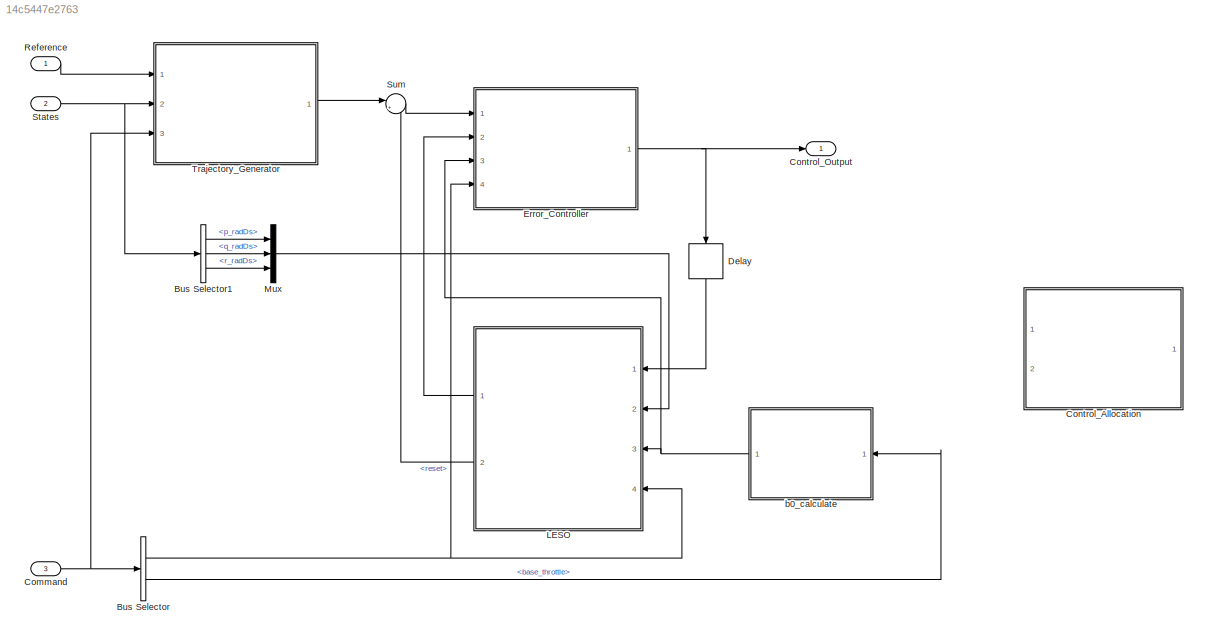
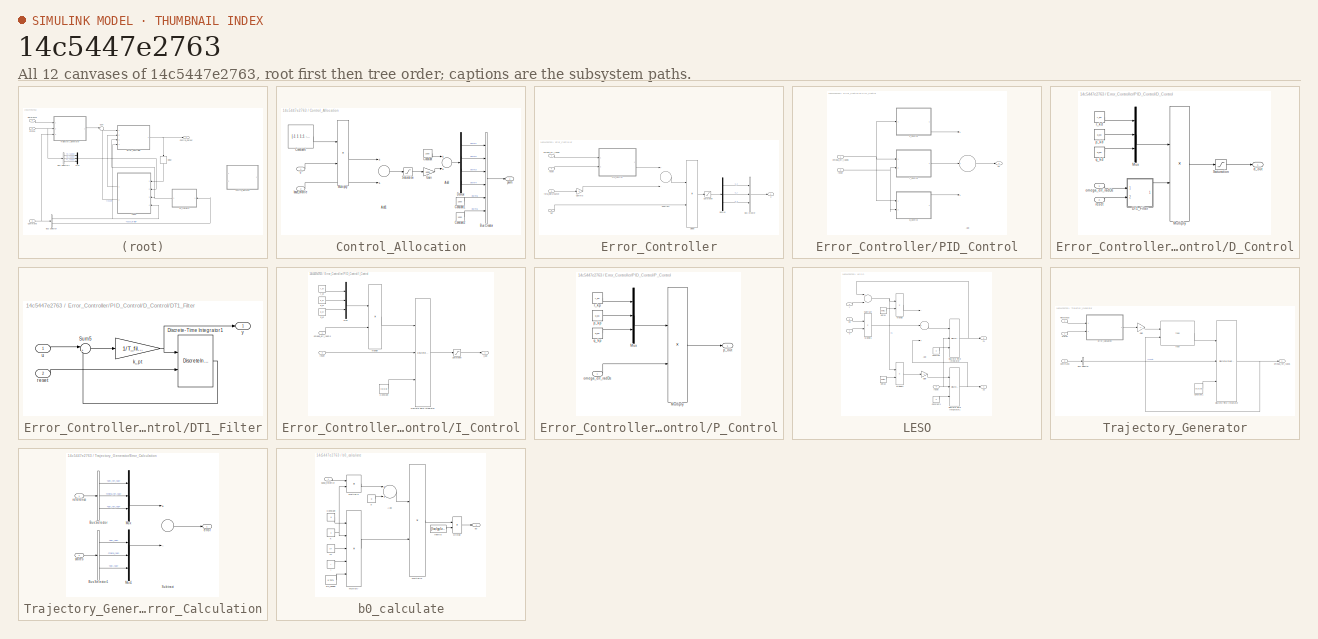
[diagram: thumbnail index - all 12 canvases of the model, root first then tree order]
MODEL slx_14c5447e2763
KIND model
CONFIG AbsTol = auto
CONFIG EnableMultiTasking = off
CONFIG FixedStep = 0.004
CONFIG MaxStep = auto
CONFIG MinStep = auto
CONFIG RelTol = 1e-3
CONFIG SampleTimeConstraint = Unconstrained
CONFIG Solver = FixedStepDiscrete
CONFIG SolverName = FixedStepDiscrete
CONFIG StartTime = 0.0
CONFIG StopTime = inf
BLOCK [BusSelector] Bus Selector
  OutputAsBus = off
  OutputSignals = reset,base_throttle
  Ports = [1, 2]
BLOCK [BusSelector] Bus Selector1
  OutputAsBus = off
  OutputSignals = p_radDs,q_radDs,r_radDs
  Ports = [1, 3]
BLOCK [Inport] Command
  IconDisplay = Port number
  OutDataTypeStr = Bus: Command
  Port = 3
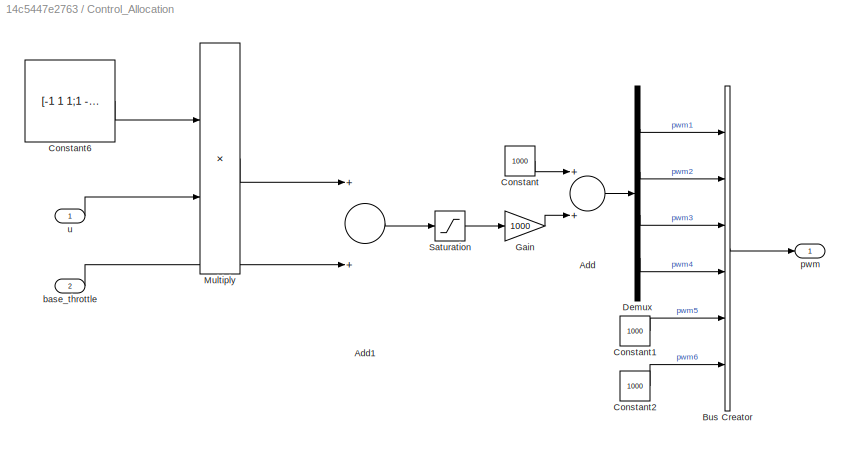
BLOCK [SubSystem] Control_Allocation
  Commented = on
  Ports = [2, 1]
  RequestExecContextInheritance = off
BLOCK [Sum] Control_Allocation/Add
  InputSameDT = off
  OutDataTypeStr = Inherit: Inherit via internal rule
  Ports = [2, 1]
  SaturateOnIntegerOverflow = off
BLOCK [Sum] Control_Allocation/Add1
  InputSameDT = off
  OutDataTypeStr = Inherit: Inherit via internal rule
  Ports = [2, 1]
  SaturateOnIntegerOverflow = off
BLOCK [BusCreator] Control_Allocation/Bus Creator
  DisplayOption = bar
  InheritFromInputs = on
  Inputs = 6
  Ports = [6, 1]
BLOCK [Constant] Control_Allocation/Constant
  OutDataTypeStr = int16
  Value = 1000
BLOCK [Constant] Control_Allocation/Constant1
  OutDataTypeStr = int16
  Value = 1000
BLOCK [Constant] Control_Allocation/Constant2
  OutDataTypeStr = int16
  Value = 1000
BLOCK [Constant] Control_Allocation/Constant6
  OutDataTypeStr = single
  Value = [-1 1 1;1 -1 1;1 1 -1;-1 -1 -1]
BLOCK [Demux] Control_Allocation/Demux
  DisplayOption = bar
  Ports = [1, 4]
BLOCK [Gain] Control_Allocation/Gain
  Gain = 1000
  OutDataTypeStr = int16
  ParamDataTypeStr = Inherit: Inherit via internal rule
  SaturateOnIntegerOverflow = off
BLOCK [Product] Control_Allocation/Multiply
  InputSameDT = off
  Multiplication = Matrix(*)
  Ports = [2, 1]
  RndMeth = Floor
  SaturateOnIntegerOverflow = off
BLOCK [Saturate] Control_Allocation/Saturation
  InputPortMap = u0
  LowerLimit = 0
  Ports = [1, 1]
  UpperLimit = 1
BLOCK [Inport] Control_Allocation/base_throttle
  IconDisplay = Port number
  Port = 2
BLOCK [Outport] Control_Allocation/pwm
  IconDisplay = Port number
BLOCK [Inport] Control_Allocation/u
  IconDisplay = Port number
BLOCK [Outport] Control_Output
  IconDisplay = Port number
  OutDataTypeStr = Bus: Control_Output
BLOCK [Delay] Delay
  DelayLength = 1
  InputPortMap = u0
  Ports = [1, 1]
BLOCK [SubSystem] Error_Controller
  Ports = [4, 1]
  RequestExecContextInheritance = off
BLOCK [BusCreator] Error_Controller/Bus Creator
  DisplayOption = bar
  InheritFromInputs = on
  Inputs = 3
  Ports = [3, 1]
BLOCK [Demux] Error_Controller/Demux
  DisplayOption = bar
  Outputs = 3
  Ports = [1, 3]
BLOCK [Product] Error_Controller/Divide
  InputSameDT = off
  Inputs = */
  Ports = [2, 1]
  RndMeth = Floor
  SaturateOnIntegerOverflow = off
BLOCK [Gain] Error_Controller/Gamma
  OutDataTypeStr = Inherit: Inherit via internal rule
  ParamDataTypeStr = Inherit: Inherit via internal rule
  SaturateOnIntegerOverflow = off
BLOCK [SubSystem] Error_Controller/PID_Control
  Ports = [2, 1]
  RequestExecContextInheritance = off
BLOCK [Sum] Error_Controller/PID_Control/Add
  AccumDataTypeStr = Inherit: Same as first input
  InputSameDT = off
  Inputs = +++
  OutDataTypeStr = Inherit: Inherit via internal rule
  Ports = [3, 1]
  SaturateOnIntegerOverflow = off
BLOCK [SubSystem] Error_Controller/PID_Control/D_Control
  Ports = [2, 1]
  RequestExecContextInheritance = off
BLOCK [SubSystem] Error_Controller/PID_Control/D_Control/DT1_Filter
  Ports = [2, 1]
  RequestExecContextInheritance = off
BLOCK [DiscreteIntegrator] Error_Controller/PID_Control/D_Control/DT1_Filter/Discrete-Time Integrator1
  ExternalReset = level
  ICPrevOutput = DiscIntNeverNeededParam
  ICPrevScaledInput = DiscIntNeverNeededParam
  Ports = [2, 1]
  SampleTime = -1
BLOCK [Sum] Error_Controller/PID_Control/D_Control/DT1_Filter/Sum5
  IconShape = round
  InputSameDT = off
  Inputs = |+-
  OutDataTypeStr = Inherit: Inherit via internal rule
  Ports = [2, 1]
  SaturateOnIntegerOverflow = off
BLOCK [Gain] Error_Controller/PID_Control/D_Control/DT1_Filter/k_pt
  Gain = 1/T_filter
  ParamDataTypeStr = Inherit: Inherit via internal rule
  SaturateOnIntegerOverflow = off
BLOCK [Inport] Error_Controller/PID_Control/D_Control/DT1_Filter/reset
  IconDisplay = Port number
  Port = 2
BLOCK [Inport] Error_Controller/PID_Control/D_Control/DT1_Filter/u
  IconDisplay = Port number
BLOCK [Outport] Error_Controller/PID_Control/D_Control/DT1_Filter/y
  IconDisplay = Port number
BLOCK [Product] Error_Controller/PID_Control/D_Control/Multiply
  InputSameDT = off
  Ports = [2, 1]
  RndMeth = Floor
  SaturateOnIntegerOverflow = off
BLOCK [Mux] Error_Controller/PID_Control/D_Control/Mux
  DisplayOption = bar
  Inputs = 3
  Ports = [3, 1]
BLOCK [Saturate] Error_Controller/PID_Control/D_Control/Saturation
  InputPortMap = u0
  LowerLimit = min_d
  Ports = [1, 1]
  UpperLimit = max_d
BLOCK [Outport] Error_Controller/PID_Control/D_Control/d_out
  IconDisplay = Port number
BLOCK [Inport] Error_Controller/PID_Control/D_Control/omega_err_radDs
  IconDisplay = Port number
BLOCK [Constant] Error_Controller/PID_Control/D_Control/p_kd
  OutDataTypeStr = single
  Value = p_kd
BLOCK [Constant] Error_Controller/PID_Control/D_Control/q_kd
  OutDataTypeStr = single
  Value = q_kd
BLOCK [Constant] Error_Controller/PID_Control/D_Control/r_kd
  OutDataTypeStr = single
  Value = r_kd
BLOCK [Inport] Error_Controller/PID_Control/D_Control/reset
  IconDisplay = Port number
  Port = 2
BLOCK [SubSystem] Error_Controller/PID_Control/I_Control
  Ports = [2, 1]
  RequestExecContextInheritance = off
BLOCK [Constant] Error_Controller/PID_Control/I_Control/Constant
  OutDataTypeStr = single
  Value = [0;0;0]
BLOCK [DiscreteIntegrator] Error_Controller/PID_Control/I_Control/Discrete-Time Integrator
  ExternalReset = level
  ICPrevOutput = DiscIntNeverNeededParam
  ICPrevScaledInput = DiscIntNeverNeededParam
  InitialConditionSetting = Auto
  InitialConditionSource = external
  Ports = [3, 1]
  SampleTime = -1
BLOCK [Product] Error_Controller/PID_Control/I_Control/Multiply
  InputSameDT = off
  Ports = [2, 1]
  RndMeth = Floor
  SaturateOnIntegerOverflow = off
BLOCK [Mux] Error_Controller/PID_Control/I_Control/Mux
  DisplayOption = bar
  Inputs = 3
  Ports = [3, 1]
BLOCK [Saturate] Error_Controller/PID_Control/I_Control/Saturation
  InputPortMap = u0
  LowerLimit = min_i
  Ports = [1, 1]
  UpperLimit = max_i
BLOCK [Outport] Error_Controller/PID_Control/I_Control/i_out
  IconDisplay = Port number
BLOCK [Inport] Error_Controller/PID_Control/I_Control/omega_err_radDs
  IconDisplay = Port number
BLOCK [Constant] Error_Controller/PID_Control/I_Control/p_ki
  OutDataTypeStr = single
  Value = p_ki
BLOCK [Constant] Error_Controller/PID_Control/I_Control/q_ki
  OutDataTypeStr = single
  Value = q_ki
BLOCK [Constant] Error_Controller/PID_Control/I_Control/r_ki
  OutDataTypeStr = single
  Value = r_ki
BLOCK [Inport] Error_Controller/PID_Control/I_Control/reset
  IconDisplay = Port number
  Port = 2
BLOCK [SubSystem] Error_Controller/PID_Control/P_Control
  Ports = [1, 1]
  RequestExecContextInheritance = off
BLOCK [Product] Error_Controller/PID_Control/P_Control/Multiply
  InputSameDT = off
  Ports = [2, 1]
  RndMeth = Floor
  SaturateOnIntegerOverflow = off
BLOCK [Mux] Error_Controller/PID_Control/P_Control/Mux
  DisplayOption = bar
  Inputs = 3
  Ports = [3, 1]
BLOCK [Inport] Error_Controller/PID_Control/P_Control/omega_err_radDs
  IconDisplay = Port number
BLOCK [Constant] Error_Controller/PID_Control/P_Control/p_kp
  OutDataTypeStr = single
  Value = p_kp
BLOCK [Outport] Error_Controller/PID_Control/P_Control/p_out
  IconDisplay = Port number
BLOCK [Constant] Error_Controller/PID_Control/P_Control/q_kp
  OutDataTypeStr = single
  Value = q_kp
BLOCK [Constant] Error_Controller/PID_Control/P_Control/r_kp
  OutDataTypeStr = single
  Value = r_kp
BLOCK [Inport] Error_Controller/PID_Control/omega_err_radDs
  IconDisplay = Port number
BLOCK [Inport] Error_Controller/PID_Control/reset
  IconDisplay = Port number
  Port = 2
BLOCK [Outport] Error_Controller/PID_Control/u0
  IconDisplay = Port number
BLOCK [Saturate] Error_Controller/Saturation
  InputPortMap = u0
  Ports = [1, 1]
BLOCK [Sum] Error_Controller/Subtract
  AccumDataTypeStr = Inherit: Same as first input
  InputSameDT = off
  Inputs = +-
  OutDataTypeStr = Inherit: Inherit via internal rule
  Ports = [2, 1]
  SaturateOnIntegerOverflow = off
BLOCK [Inport] Error_Controller/b0
  IconDisplay = Port number
  Port = 3
BLOCK [Inport] Error_Controller/omega_err_radDs
  IconDisplay = Port number
BLOCK [Inport] Error_Controller/reset
  IconDisplay = Port number
  Port = 4
BLOCK [Inport] Error_Controller/total_disturbance
  IconDisplay = Port number
  Port = 2
BLOCK [Outport] Error_Controller/u
  IconDisplay = Port number
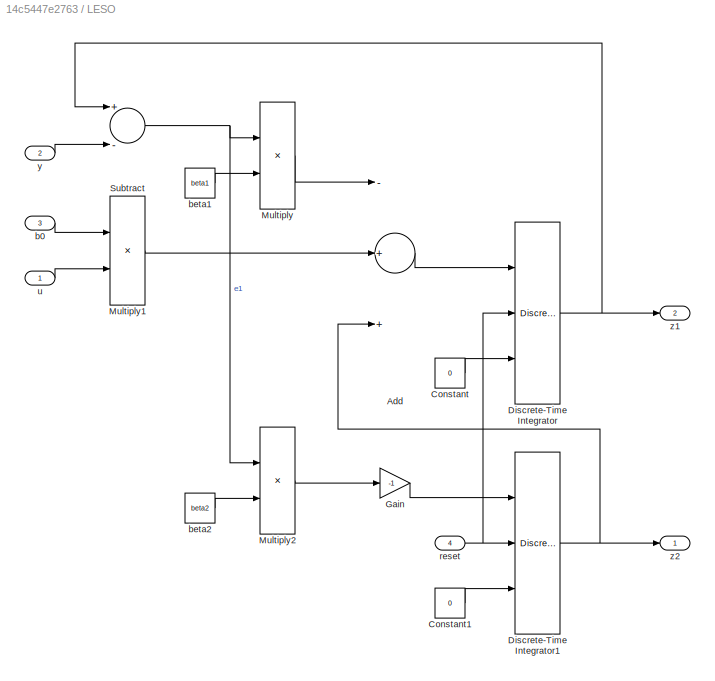
BLOCK [SubSystem] LESO
  Ports = [4, 2]
  RequestExecContextInheritance = off
BLOCK [Sum] LESO/Add
  AccumDataTypeStr = Inherit: Same as first input
  InputSameDT = off
  Inputs = -++
  OutDataTypeStr = Inherit: Inherit via internal rule
  Ports = [3, 1]
  SaturateOnIntegerOverflow = off
BLOCK [Constant] LESO/Constant
  OutDataTypeStr = single
  Value = 0
BLOCK [Constant] LESO/Constant1
  OutDataTypeStr = single
  Value = 0
BLOCK [DiscreteIntegrator] LESO/Discrete-Time Integrator
  ExternalReset = level
  ICPrevOutput = DiscIntNeverNeededParam
  ICPrevScaledInput = DiscIntNeverNeededParam
  InitialConditionSetting = Auto
  InitialConditionSource = external
  Ports = [3, 1]
  SampleTime = -1
BLOCK [DiscreteIntegrator] LESO/Discrete-Time Integrator1
  ExternalReset = level
  ICPrevOutput = DiscIntNeverNeededParam
  ICPrevScaledInput = DiscIntNeverNeededParam
  InitialConditionSetting = Auto
  InitialConditionSource = external
  Ports = [3, 1]
  SampleTime = -1
BLOCK [Gain] LESO/Gain
  Gain = -1
  ParamDataTypeStr = Inherit: Inherit via internal rule
  SaturateOnIntegerOverflow = off
BLOCK [Product] LESO/Multiply
  InputSameDT = off
  Ports = [2, 1]
  RndMeth = Floor
  SaturateOnIntegerOverflow = off
BLOCK [Product] LESO/Multiply1
  InputSameDT = off
  Ports = [2, 1]
  RndMeth = Floor
  SaturateOnIntegerOverflow = off
BLOCK [Product] LESO/Multiply2
  InputSameDT = off
  Ports = [2, 1]
  RndMeth = Floor
  SaturateOnIntegerOverflow = off
BLOCK [Sum] LESO/Subtract
  AccumDataTypeStr = Inherit: Same as first input
  InputSameDT = off
  Inputs = +-
  OutDataTypeStr = Inherit: Inherit via internal rule
  Ports = [2, 1]
  SaturateOnIntegerOverflow = off
BLOCK [Inport] LESO/b0
  IconDisplay = Port number
  Port = 3
BLOCK [Constant] LESO/beta1
  OutDataTypeStr = single
  Value = beta1
BLOCK [Constant] LESO/beta2
  OutDataTypeStr = single
  Value = beta2
BLOCK [Inport] LESO/reset
  IconDisplay = Port number
  Port = 4
BLOCK [Inport] LESO/u
  IconDisplay = Port number
BLOCK [Inport] LESO/y
  IconDisplay = Port number
  Port = 2
BLOCK [Outport] LESO/z1
  IconDisplay = Port number
  Port = 2
BLOCK [Outport] LESO/z2
  IconDisplay = Port number
BLOCK [Mux] Mux
  DisplayOption = bar
  Inputs = 3
  Ports = [3, 1]
BLOCK [Inport] Reference
  IconDisplay = Port number
  OutDataTypeStr = Bus: Reference
BLOCK [Inport] States
  IconDisplay = Port number
  OutDataTypeStr = Bus: States
  Port = 2
BLOCK [Sum] Sum
  IconShape = round
  InputSameDT = off
  Inputs = |+-
  OutDataTypeStr = Inherit: Inherit via internal rule
  Ports = [2, 1]
  SaturateOnIntegerOverflow = off
BLOCK [SubSystem] Trajectory_Generator
  Ports = [3, 1]
  RequestExecContextInheritance = off
BLOCK [BusSelector] Trajectory_Generator/Bus Selector
  OutputAsBus = off
  OutputSignals = reset
  Ports = [1, 1]
BLOCK [Inport] Trajectory_Generator/Command
  IconDisplay = Port number
  Port = 3
BLOCK [Constant] Trajectory_Generator/Constant1
  OutDataTypeStr = single
  Value = [0;0;0]
BLOCK [DiscreteIntegrator] Trajectory_Generator/Discrete-Time Integrator
  ExternalReset = level
  ICPrevOutput = DiscIntNeverNeededParam
  ICPrevScaledInput = DiscIntNeverNeededParam
  InitialConditionSetting = Auto
  InitialConditionSource = external
  Ports = [3, 1]
  SampleTime = -1
BLOCK [SubSystem] Trajectory_Generator/Error_Calculation
  Ports = [2, 1]
  RequestExecContextInheritance = off
BLOCK [BusSelector] Trajectory_Generator/Error_Calculation/Bus Selector
  OutputAsBus = off
  OutputSignals = phi_ref_rad,theta_ref_rad,psi_ref_rad
  Ports = [1, 3]
BLOCK [BusSelector] Trajectory_Generator/Error_Calculation/Bus Selector1
  OutputAsBus = off
  OutputSignals = phi_rad,theta_rad,psi_rad
  Ports = [1, 3]
BLOCK [Mux] Trajectory_Generator/Error_Calculation/Mux
  DisplayOption = bar
  Inputs = 3
  Ports = [3, 1]
BLOCK [Mux] Trajectory_Generator/Error_Calculation/Mux1
  DisplayOption = bar
  Inputs = 3
  Ports = [3, 1]
BLOCK [Sum] Trajectory_Generator/Error_Calculation/Subtract
  AccumDataTypeStr = Inherit: Same as first input
  InputSameDT = off
  Inputs = +-
  OutDataTypeStr = Inherit: Inherit via internal rule
  Ports = [2, 1]
  SaturateOnIntegerOverflow = off
BLOCK [Outport] Trajectory_Generator/Error_Calculation/error
  IconDisplay = Port number
BLOCK [Inport] Trajectory_Generator/Error_Calculation/reference
  IconDisplay = Port number
BLOCK [Inport] Trajectory_Generator/Error_Calculation/states
  IconDisplay = Port number
  Port = 2
BLOCK [Gain] Trajectory_Generator/Gain
  Gain = -1
  ParamDataTypeStr = Inherit: Inherit via internal rule
  SaturateOnIntegerOverflow = off
BLOCK [Inport] Trajectory_Generator/Reference
  IconDisplay = Port number
BLOCK [Inport] Trajectory_Generator/States
  IconDisplay = Port number
  Port = 2
BLOCK [Reference] Trajectory_Generator/fhan  REF=adrc_lib/fhan  (lib defined in slx_aa0e7a794c8b, slx_b765c46a6a7d, +1 more)
  Ports = [2, 1]
  SourceBlock = adrc_lib/fhan
BLOCK [Outport] Trajectory_Generator/omega_ref_radDs
  IconDisplay = Port number
BLOCK [SubSystem] b0_calculate
  Ports = [1, 1]
  RequestExecContextInheritance = off
BLOCK [Sum] b0_calculate/Add
  AccumDataTypeStr = Inherit: Same as first input
  InputSameDT = off
  OutDataTypeStr = Inherit: Inherit via internal rule
  Ports = [2, 1]
  SaturateOnIntegerOverflow = off
BLOCK [Constant] b0_calculate/Constant
  OutDataTypeStr = single
  Value = 8
BLOCK [Product] b0_calculate/Divide
  InputSameDT = off
  Inputs = */
  Ports = [2, 1]
  RndMeth = Floor
  SaturateOnIntegerOverflow = off
BLOCK [Product] b0_calculate/Multiply
  InputSameDT = off
  Inputs = 5
  Ports = [5, 1]
  RndMeth = Floor
  SaturateOnIntegerOverflow = off
BLOCK [Product] b0_calculate/Multiply1
  InputSameDT = off
  Ports = [2, 1]
  RndMeth = Floor
  SaturateOnIntegerOverflow = off
BLOCK [Product] b0_calculate/Multiply2
  InputSameDT = off
  Ports = [2, 1]
  RndMeth = Floor
  SaturateOnIntegerOverflow = off
BLOCK [Outport] b0_calculate/b0
  IconDisplay = Port number
BLOCK [Inport] b0_calculate/base_throttle
  IconDisplay = Port number
BLOCK [Constant] b0_calculate/cT
  OutDataTypeStr = single
  Value = cT
BLOCK [Constant] b0_calculate/inertia
  OutDataTypeStr = single
  Value = [Ixx;Iyy;Izz]
BLOCK [Constant] b0_calculate/k
  OutDataTypeStr = single
  Value = k
BLOCK [Constant] b0_calculate/l
  OutDataTypeStr = single
  Value = l
BLOCK [Constant] b0_calculate/p
  OutDataTypeStr = single
  Value = p
BLOCK [Constant] b0_calculate/sin_45deg
  Value = 0.7071
LINE Bus Selector1:1 -> Mux:1
LINE Bus Selector1:2 -> Mux:2
LINE Bus Selector1:3 -> Mux:3
NET Bus Selector:1 -> Error_Controller:4, LESO:4
LINE Bus Selector:2 -> b0_calculate:1
NET Command:1 -> Bus Selector:1, Trajectory_Generator:3
LINE Control_Allocation/Add1:1 -> Control_Allocation/Saturation:1
LINE Control_Allocation/Add:1 -> Control_Allocation/Demux:1
LINE Control_Allocation/Bus Creator:1 -> Control_Allocation/pwm:1
LINE Control_Allocation/Constant1:1 -> Control_Allocation/Bus Creator:5
LINE Control_Allocation/Constant2:1 -> Control_Allocation/Bus Creator:6
LINE Control_Allocation/Constant6:1 -> Control_Allocation/Multiply:1
LINE Control_Allocation/Constant:1 -> Control_Allocation/Add:1
LINE Control_Allocation/Demux:1 -> Control_Allocation/Bus Creator:1
LINE Control_Allocation/Demux:2 -> Control_Allocation/Bus Creator:2
LINE Control_Allocation/Demux:3 -> Control_Allocation/Bus Creator:3
LINE Control_Allocation/Demux:4 -> Control_Allocation/Bus Creator:4
LINE Control_Allocation/Gain:1 -> Control_Allocation/Add:2
LINE Control_Allocation/Multiply:1 -> Control_Allocation/Add1:1
LINE Control_Allocation/Saturation:1 -> Control_Allocation/Gain:1
LINE Control_Allocation/base_throttle:1 -> Control_Allocation/Add1:2
LINE Control_Allocation/u:1 -> Control_Allocation/Multiply:2
LINE Delay:1 -> LESO:1
LINE Error_Controller/Bus Creator:1 -> Error_Controller/u:1
LINE Error_Controller/Demux:1 -> Error_Controller/Bus Creator:1
LINE Error_Controller/Demux:2 -> Error_Controller/Bus Creator:2
LINE Error_Controller/Demux:3 -> Error_Controller/Bus Creator:3
LINE Error_Controller/Divide:1 -> Error_Controller/Saturation:1
LINE Error_Controller/Gamma:1 -> Error_Controller/Subtract:2
LINE Error_Controller/PID_Control/Add:1 -> Error_Controller/PID_Control/u0:1
LINE Error_Controller/PID_Control/D_Control/DT1_Filter/Discrete-Time Integrator1:1 -> Error_Controller/PID_Control/D_Control/DT1_Filter/Sum5:2
LINE Error_Controller/PID_Control/D_Control/DT1_Filter/Sum5:1 -> Error_Controller/PID_Control/D_Control/DT1_Filter/k_pt:1
NET Error_Controller/PID_Control/D_Control/DT1_Filter/k_pt:1 -> Error_Controller/PID_Control/D_Control/DT1_Filter/Discrete-Time Integrator1:1, Error_Controller/PID_Control/D_Control/DT1_Filter/y:1
LINE Error_Controller/PID_Control/D_Control/DT1_Filter/reset:1 -> Error_Controller/PID_Control/D_Control/DT1_Filter/Discrete-Time Integrator1:2
LINE Error_Controller/PID_Control/D_Control/DT1_Filter/u:1 -> Error_Controller/PID_Control/D_Control/DT1_Filter/Sum5:1
LINE Error_Controller/PID_Control/D_Control/DT1_Filter:1 -> Error_Controller/PID_Control/D_Control/Multiply:2
LINE Error_Controller/PID_Control/D_Control/Multiply:1 -> Error_Controller/PID_Control/D_Control/Saturation:1
LINE Error_Controller/PID_Control/D_Control/Mux:1 -> Error_Controller/PID_Control/D_Control/Multiply:1
LINE Error_Controller/PID_Control/D_Control/Saturation:1 -> Error_Controller/PID_Control/D_Control/d_out:1
LINE Error_Controller/PID_Control/D_Control/omega_err_radDs:1 -> Error_Controller/PID_Control/D_Control/DT1_Filter:1
LINE Error_Controller/PID_Control/D_Control/p_kd:1 -> Error_Controller/PID_Control/D_Control/Mux:2
LINE Error_Controller/PID_Control/D_Control/q_kd:1 -> Error_Controller/PID_Control/D_Control/Mux:3
LINE Error_Controller/PID_Control/D_Control/r_kd:1 -> Error_Controller/PID_Control/D_Control/Mux:1
LINE Error_Controller/PID_Control/D_Control/reset:1 -> Error_Controller/PID_Control/D_Control/DT1_Filter:2
LINE Error_Controller/PID_Control/D_Control:1 -> Error_Controller/PID_Control/Add:3
LINE Error_Controller/PID_Control/I_Control/Constant:1 -> Error_Controller/PID_Control/I_Control/Discrete-Time Integrator:3
LINE Error_Controller/PID_Control/I_Control/Discrete-Time Integrator:1 -> Error_Controller/PID_Control/I_Control/Saturation:1
LINE Error_Controller/PID_Control/I_Control/Multiply:1 -> Error_Controller/PID_Control/I_Control/Discrete-Time Integrator:1
LINE Error_Controller/PID_Control/I_Control/Mux:1 -> Error_Controller/PID_Control/I_Control/Multiply:1
LINE Error_Controller/PID_Control/I_Control/Saturation:1 -> Error_Controller/PID_Control/I_Control/i_out:1
LINE Error_Controller/PID_Control/I_Control/omega_err_radDs:1 -> Error_Controller/PID_Control/I_Control/Multiply:2
LINE Error_Controller/PID_Control/I_Control/p_ki:1 -> Error_Controller/PID_Control/I_Control/Mux:2
LINE Error_Controller/PID_Control/I_Control/q_ki:1 -> Error_Controller/PID_Control/I_Control/Mux:3
LINE Error_Controller/PID_Control/I_Control/r_ki:1 -> Error_Controller/PID_Control/I_Control/Mux:1
LINE Error_Controller/PID_Control/I_Control/reset:1 -> Error_Controller/PID_Control/I_Control/Discrete-Time Integrator:2
LINE Error_Controller/PID_Control/I_Control:1 -> Error_Controller/PID_Control/Add:2
LINE Error_Controller/PID_Control/P_Control/Multiply:1 -> Error_Controller/PID_Control/P_Control/p_out:1
LINE Error_Controller/PID_Control/P_Control/Mux:1 -> Error_Controller/PID_Control/P_Control/Multiply:1
LINE Error_Controller/PID_Control/P_Control/omega_err_radDs:1 -> Error_Controller/PID_Control/P_Control/Multiply:2
LINE Error_Controller/PID_Control/P_Control/p_kp:1 -> Error_Controller/PID_Control/P_Control/Mux:2
LINE Error_Controller/PID_Control/P_Control/q_kp:1 -> Error_Controller/PID_Control/P_Control/Mux:3
LINE Error_Controller/PID_Control/P_Control/r_kp:1 -> Error_Controller/PID_Control/P_Control/Mux:1
LINE Error_Controller/PID_Control/P_Control:1 -> Error_Controller/PID_Control/Add:1
NET Error_Controller/PID_Control/omega_err_radDs:1 -> Error_Controller/PID_Control/D_Control:1, Error_Controller/PID_Control/I_Control:1, Error_Controller/PID_Control/P_Control:1
NET Error_Controller/PID_Control/reset:1 -> Error_Controller/PID_Control/D_Control:2, Error_Controller/PID_Control/I_Control:2
LINE Error_Controller/PID_Control:1 -> Error_Controller/Subtract:1
LINE Error_Controller/Saturation:1 -> Error_Controller/Demux:1
LINE Error_Controller/Subtract:1 -> Error_Controller/Divide:1
LINE Error_Controller/b0:1 -> Error_Controller/Divide:2
LINE Error_Controller/omega_err_radDs:1 -> Error_Controller/PID_Control:1
LINE Error_Controller/reset:1 -> Error_Controller/PID_Control:2
LINE Error_Controller/total_disturbance:1 -> Error_Controller/Gamma:1
NET Error_Controller:1 -> Control_Output:1, Delay:1
LINE LESO/Add:1 -> LESO/Discrete-Time Integrator:1
LINE LESO/Constant1:1 -> LESO/Discrete-Time Integrator1:3
LINE LESO/Constant:1 -> LESO/Discrete-Time Integrator:3
NET LESO/Discrete-Time Integrator1:1 -> LESO/Add:3, LESO/z2:1
NET LESO/Discrete-Time Integrator:1 -> LESO/Subtract:1, LESO/z1:1
LINE LESO/Gain:1 -> LESO/Discrete-Time Integrator1:1
LINE LESO/Multiply1:1 -> LESO/Add:2
LINE LESO/Multiply2:1 -> LESO/Gain:1
LINE LESO/Multiply:1 -> LESO/Add:1
NET LESO/Subtract:1 -> LESO/Multiply2:1, LESO/Multiply:1
LINE LESO/b0:1 -> LESO/Multiply1:1
LINE LESO/beta1:1 -> LESO/Multiply:2
LINE LESO/beta2:1 -> LESO/Multiply2:2
NET LESO/reset:1 -> LESO/Discrete-Time Integrator1:2, LESO/Discrete-Time Integrator:2
LINE LESO/u:1 -> LESO/Multiply1:2
LINE LESO/y:1 -> LESO/Subtract:2
LINE LESO:1 -> Error_Controller:2
LINE LESO:2 -> Sum:2
LINE Mux:1 -> LESO:2
LINE Reference:1 -> Trajectory_Generator:1
NET States:1 -> Bus Selector1:1, Trajectory_Generator:2
LINE Sum:1 -> Error_Controller:1
LINE Trajectory_Generator/Bus Selector:1 -> Trajectory_Generator/Discrete-Time Integrator:2
LINE Trajectory_Generator/Command:1 -> Trajectory_Generator/Bus Selector:1
LINE Trajectory_Generator/Constant1:1 -> Trajectory_Generator/Discrete-Time Integrator:3
NET Trajectory_Generator/Discrete-Time Integrator:1 -> Trajectory_Generator/fhan:2, Trajectory_Generator/omega_ref_radDs:1
LINE Trajectory_Generator/Error_Calculation/Bus Selector1:1 -> Trajectory_Generator/Error_Calculation/Mux1:1
LINE Trajectory_Generator/Error_Calculation/Bus Selector1:2 -> Trajectory_Generator/Error_Calculation/Mux1:2
LINE Trajectory_Generator/Error_Calculation/Bus Selector1:3 -> Trajectory_Generator/Error_Calculation/Mux1:3
LINE Trajectory_Generator/Error_Calculation/Bus Selector:1 -> Trajectory_Generator/Error_Calculation/Mux:1
LINE Trajectory_Generator/Error_Calculation/Bus Selector:2 -> Trajectory_Generator/Error_Calculation/Mux:2
LINE Trajectory_Generator/Error_Calculation/Bus Selector:3 -> Trajectory_Generator/Error_Calculation/Mux:3
LINE Trajectory_Generator/Error_Calculation/Mux1:1 -> Trajectory_Generator/Error_Calculation/Subtract:2
LINE Trajectory_Generator/Error_Calculation/Mux:1 -> Trajectory_Generator/Error_Calculation/Subtract:1
LINE Trajectory_Generator/Error_Calculation/Subtract:1 -> Trajectory_Generator/Error_Calculation/error:1
LINE Trajectory_Generator/Error_Calculation/reference:1 -> Trajectory_Generator/Error_Calculation/Bus Selector:1
LINE Trajectory_Generator/Error_Calculation/states:1 -> Trajectory_Generator/Error_Calculation/Bus Selector1:1
LINE Trajectory_Generator/Error_Calculation:1 -> Trajectory_Generator/Gain:1
LINE Trajectory_Generator/Gain:1 -> Trajectory_Generator/fhan:1
LINE Trajectory_Generator/Reference:1 -> Trajectory_Generator/Error_Calculation:1
LINE Trajectory_Generator/States:1 -> Trajectory_Generator/Error_Calculation:2
LINE Trajectory_Generator/fhan:1 -> Trajectory_Generator/Discrete-Time Integrator:1
LINE Trajectory_Generator:1 -> Sum:1
LINE b0_calculate/Add:1 -> b0_calculate/Multiply2:1
LINE b0_calculate/Constant:1 -> b0_calculate/Multiply:1
LINE b0_calculate/Divide:1 -> b0_calculate/b0:1
LINE b0_calculate/Multiply1:1 -> b0_calculate/Add:1
LINE b0_calculate/Multiply2:1 -> b0_calculate/Divide:1
LINE b0_calculate/Multiply:1 -> b0_calculate/Multiply2:2
LINE b0_calculate/base_throttle:1 -> b0_calculate/Multiply1:1
LINE b0_calculate/cT:1 -> b0_calculate/Multiply:3
LINE b0_calculate/inertia:1 -> b0_calculate/Divide:2
NET b0_calculate/k:1 -> b0_calculate/Multiply1:2, b0_calculate/Multiply:2
LINE b0_calculate/l:1 -> b0_calculate/Multiply:4
LINE b0_calculate/p:1 -> b0_calculate/Add:2
LINE b0_calculate/sin_45deg:1 -> b0_calculate/Multiply:5
NET b0_calculate:1 -> Error_Controller:3, LESO:3
note: NET lines group one-source signal fan-out (src -> all destinations, sorted); 1:1 wires keep LINE
